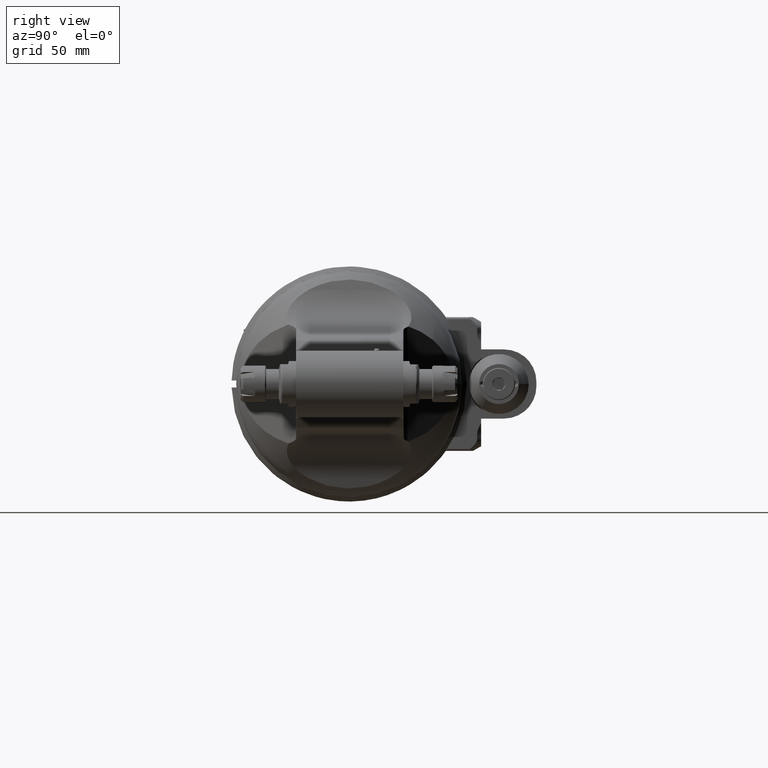
[diagram: clean part render]
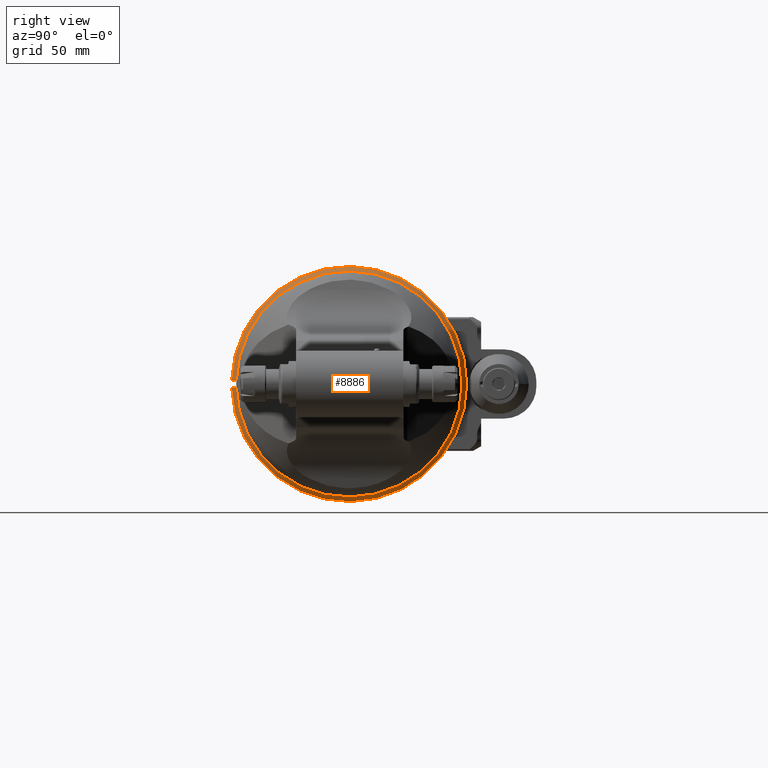
[diagram: same view with one face highlighted and labeled with its STEP entity id]
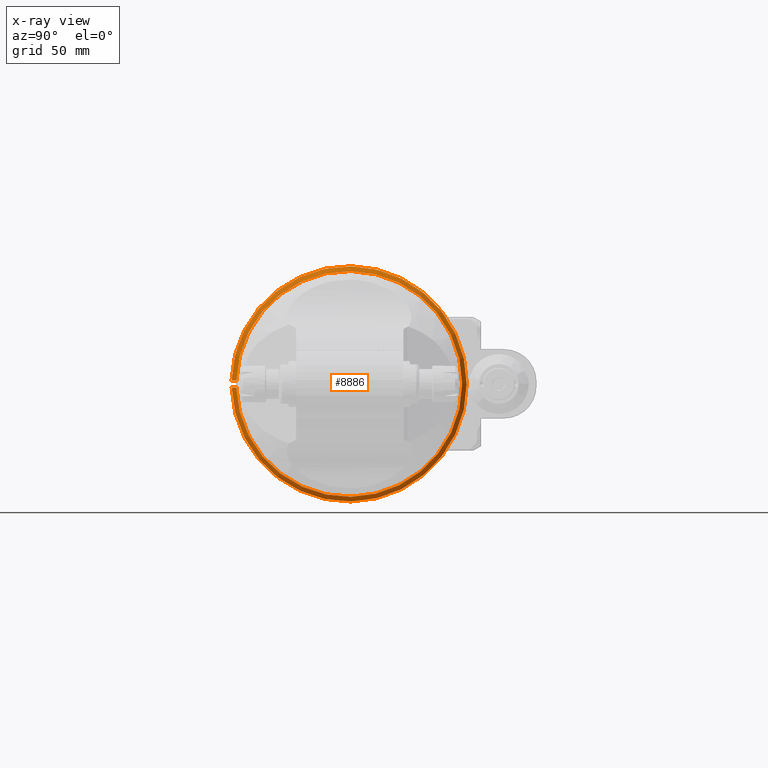
[diagram: x-ray of the same camera — body ghosted, the highlighted face saturated]
A machine part, right view. The second image highlights one B-rep face of the part: STEP entity #8886.
The next image is the same camera in x-ray: the body ghosted, the highlighted face saturated — about 0% of this face is hidden behind the body in this view.
In plain terms, the highlighted conical surface has half-angle 45 deg.
Its self-contained STEP definition (entity closure, byte-faithful):
#175=(
BOUNDED_CURVE()
B_SPLINE_CURVE(2,(#13331,#13332,#13333),.UNSPECIFIED.,.F.,.F.)
B_SPLINE_CURVE_WITH_KNOTS((3,3),(-0.564591459525085,-0.191486343836374),
 .UNSPECIFIED.)
CURVE()
GEOMETRIC_REPRESENTATION_ITEM()
RATIONAL_B_SPLINE_CURVE((1.00850972307627,1.00599717540352,1.00308912932))
REPRESENTATION_ITEM('')
);
#176=(
BOUNDED_CURVE()
B_SPLINE_CURVE(2,(#13336,#13337,#13338),.UNSPECIFIED.,.F.,.F.)
B_SPLINE_CURVE_WITH_KNOTS((3,3),(-5.67826879781681,-5.3051636821038),
 .UNSPECIFIED.)
CURVE()
GEOMETRIC_REPRESENTATION_ITEM()
RATIONAL_B_SPLINE_CURVE((1.00308912932,1.00599717540371,1.00850972307659))
REPRESENTATION_ITEM('')
);
#548=CONICAL_SURFACE('',#9509,50.,0.785398163397448);
#660=FACE_OUTER_BOUND('',#1216,.T.);
#1216=EDGE_LOOP('',(#6047,#6048,#6049,#6050));
#1862=CIRCLE('',#9504,51.);
#1867=CIRCLE('',#9510,49.);
#3760=VERTEX_POINT('',#13260);
#3761=VERTEX_POINT('',#13261);
#3767=VERTEX_POINT('',#13330);
#3768=VERTEX_POINT('',#13334);
#4667=EDGE_CURVE('',#3760,#3761,#1862,.T.);
#4677=EDGE_CURVE('',#3761,#3767,#175,.T.);
#4678=EDGE_CURVE('',#3768,#3767,#1867,.T.);
#4679=EDGE_CURVE('',#3768,#3760,#176,.T.);
#6047=ORIENTED_EDGE('',*,*,#4667,.T.);
#6048=ORIENTED_EDGE('',*,*,#4677,.T.);
#6049=ORIENTED_EDGE('',*,*,#4678,.F.);
#6050=ORIENTED_EDGE('',*,*,#4679,.T.);
#8886=ADVANCED_FACE('',(#660),#548,.T.);
#9504=AXIS2_PLACEMENT_3D('',#13262,#10541,#10542);
#9509=AXIS2_PLACEMENT_3D('',#13329,#10553,#10554);
#9510=AXIS2_PLACEMENT_3D('',#13335,#10555,#10556);
#10541=DIRECTION('center_axis',(1.,0.,0.));
#10542=DIRECTION('ref_axis',(0.,1.,0.));
#10553=DIRECTION('center_axis',(-1.,0.,0.));
#10554=DIRECTION('ref_axis',(0.,1.,0.));
#10555=DIRECTION('center_axis',(1.,0.,0.));
#10556=DIRECTION('ref_axis',(0.,1.,0.));
#13260=CARTESIAN_POINT('',(-14.,-50.9779364039,-1.5));
#13261=CARTESIAN_POINT('',(-14.,-50.9779364039,1.5));
#13262=CARTESIAN_POINT('Origin',(-14.,0.,0.));
#13329=CARTESIAN_POINT('Origin',(-13.,0.,0.));
#13330=CARTESIAN_POINT('',(-12.,-48.97703543499,1.5));
#13331=CARTESIAN_POINT('Ctrl Pts',(-14.0000000000021,-50.9779364038979,
1.5));
#13332=CARTESIAN_POINT('Ctrl Pts',(-12.9799819768498,-49.9574769100383,
1.5));
#13333=CARTESIAN_POINT('Ctrl Pts',(-12.0000000000021,-48.9770354349879,
1.5));
#13334=CARTESIAN_POINT('',(-12.,-48.97703543499,-1.5));
#13335=CARTESIAN_POINT('Origin',(-12.,0.,0.));
#13336=CARTESIAN_POINT('Ctrl Pts',(-12.0000000000021,-48.9770354349879,
-1.5));
#13337=CARTESIAN_POINT('Ctrl Pts',(-12.9799819769135,-49.957476910102,-1.5));
#13338=CARTESIAN_POINT('Ctrl Pts',(-14.0000000001347,-50.9779364040305,
-1.5));